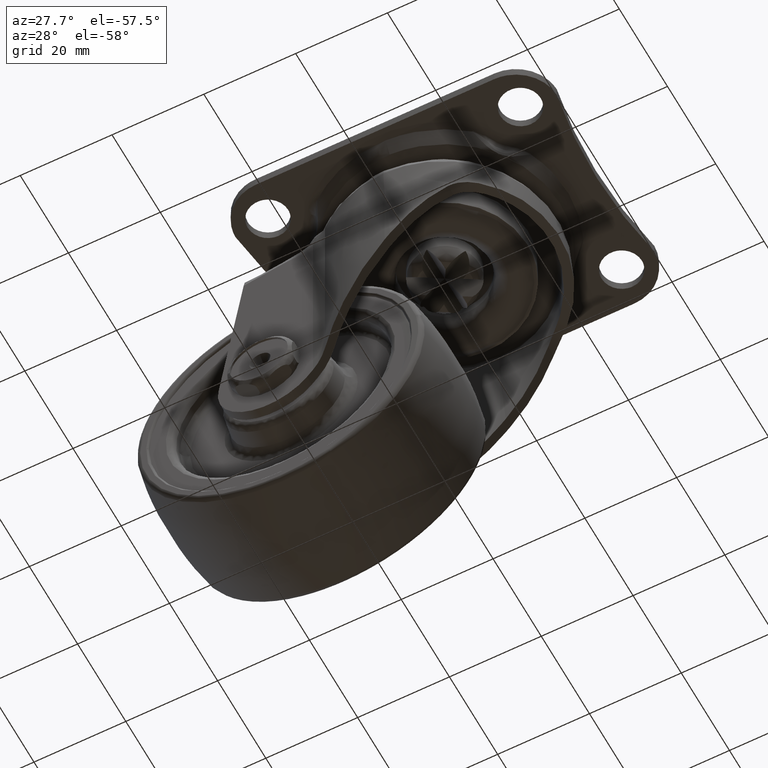
[diagram: clean part render]
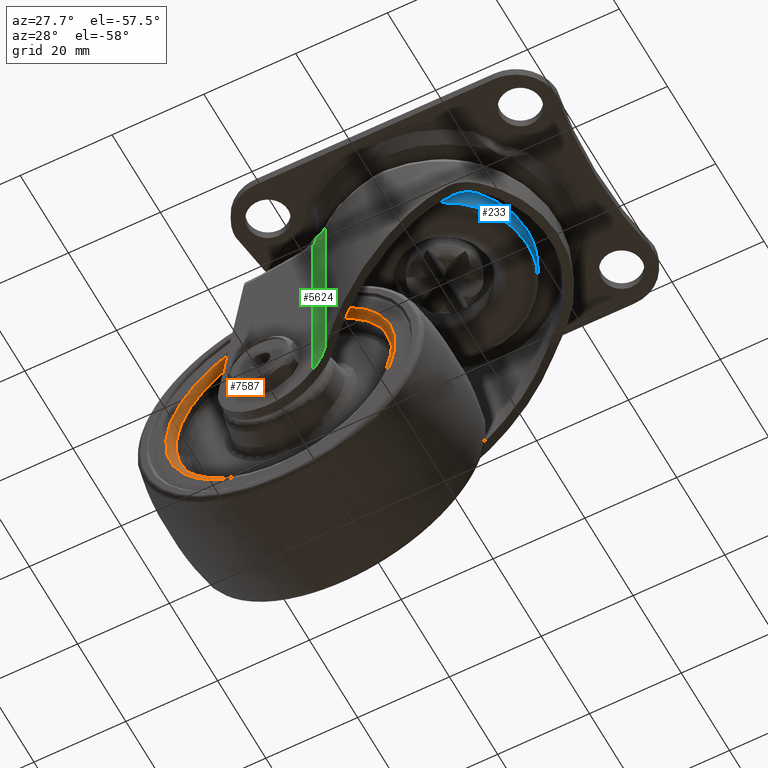
[diagram: same view with three faces highlighted in distinct colors, each labeled with its STEP entity id]
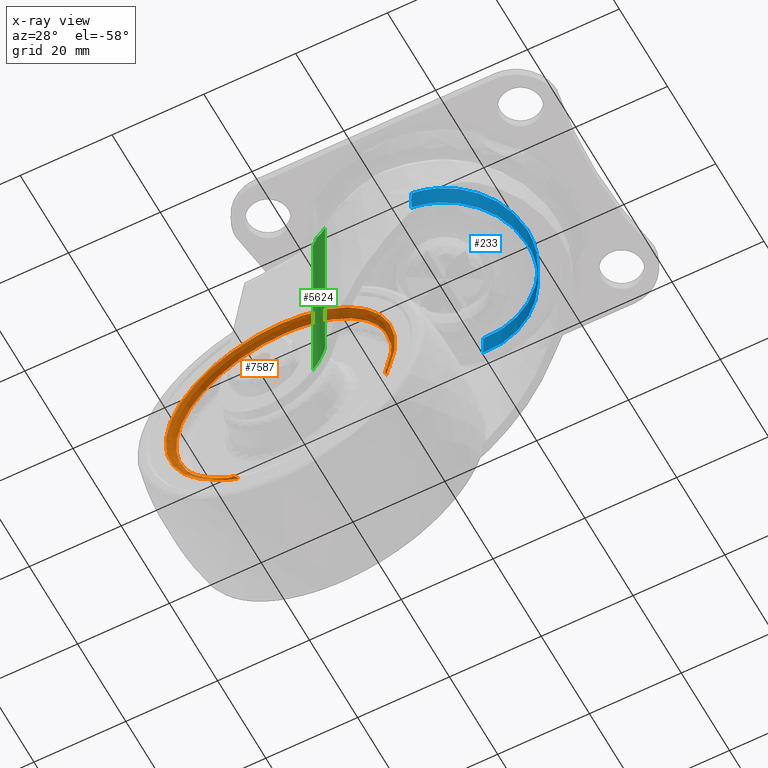
[diagram: x-ray of the same camera — body ghosted, the three highlighted faces saturated]
A machine part, auxiliary view with three faces highlighted in distinct colors.
The next image is the same camera in x-ray (body ghosted, the three faces saturated) — at least one of them is partly hidden behind the body in this view.
Their STEP definitions:

[orange] entity #7587 — the highlighted face is a freeform B-spline surface patch.
#6127=CARTESIAN_POINT('',(-42.886288982151058,-11.500000000000000,-33.541592740817762));
#6128=VERTEX_POINT('',#6127);
#6134=CARTESIAN_POINT('',(-39.005813372869362,-11.499999999756501,-73.763429723027201));
#6135=VERTEX_POINT('',#6134);
#6136=CARTESIAN_POINT('',(-42.886288982151065,-11.500000000000000,-33.541592740817762));
#6137=CARTESIAN_POINT('',(-52.500000000000000,-11.500000000000002,-40.583260841394967));
#6138=CARTESIAN_POINT('',(-52.500000000000007,-11.500000000000000,-52.499994000000001));
#6139=CARTESIAN_POINT('',(-52.500000000000007,-11.499999999999998,-67.413547459591825));
#6140=CARTESIAN_POINT('',(-39.005813372869355,-11.499999999756501,-73.763429723027187));
#6148=(BOUNDED_CURVE()B_SPLINE_CURVE(2,(#6136,#6137,#6138,#6139,#6140),.UNSPECIFIED.,.F.,.U.)B_SPLINE_CURVE_WITH_KNOTS((3,2,3),(0.601836029255207,0.750000000000000,0.927668464328042),.UNSPECIFIED.)CURVE()GEOMETRIC_REPRESENTATION_ITEM()RATIONAL_B_SPLINE_CURVE((0.858582433149524,0.826415110785501,1.0,0.791848446405268,0.879552627807912))REPRESENTATION_ITEM(''));
#6149=EDGE_CURVE('',#6128,#6135,#6148,.T.);
#6166=CARTESIAN_POINT('',(-6.723468278449111,-11.499999999737250,-59.983718638088760));
#6167=VERTEX_POINT('',#6166);
#6181=CARTESIAN_POINT('',(-10.866819571022670,-11.500000000000000,-37.552159122328412));
#6182=VERTEX_POINT('',#6181);
#6183=CARTESIAN_POINT('',(-6.723468278449111,-11.499999999737248,-59.983718638088753));
#6184=CARTESIAN_POINT('',(-5.500000000000002,-11.500000000000000,-56.341864984569291));
#6185=CARTESIAN_POINT('',(-5.500000000000002,-11.500000000000000,-52.499994000000001));
#6186=CARTESIAN_POINT('',(-5.500000000000003,-11.500000000000004,-44.062634278598722));
#6187=CARTESIAN_POINT('',(-10.866819571022670,-11.500000000000000,-37.552159122328405));
#6195=(BOUNDED_CURVE()B_SPLINE_CURVE(2,(#6183,#6184,#6185,#6186,#6187),.UNSPECIFIED.,.F.,.U.)B_SPLINE_CURVE_WITH_KNOTS((3,2,3),(0.195865557710780,0.250000000000000,0.360504598346041),.UNSPECIFIED.)CURVE()GEOMETRIC_REPRESENTATION_ITEM()RATIONAL_B_SPLINE_CURVE((0.900621820758322,0.936577555796957,1.0,0.870535809986962,0.855522726514614))REPRESENTATION_ITEM(''));
#6196=EDGE_CURVE('',#6167,#6182,#6195,.T.);
#6296=CARTESIAN_POINT('',(-29.0,-11.500000000000000,-28.999994000000001));
#6297=VERTEX_POINT('',#6296);
#6298=CARTESIAN_POINT('',(-10.866819571022670,-11.500000000000000,-37.552159122328405));
#6299=CARTESIAN_POINT('',(-17.916677845793483,-11.500000000000000,-28.999994000000008));
#6300=CARTESIAN_POINT('',(-29.0,-11.500000000000000,-28.999994000000001));
#6308=(BOUNDED_CURVE()B_SPLINE_CURVE(2,(#6298,#6299,#6300),.UNSPECIFIED.,.F.,.U.)B_SPLINE_CURVE_WITH_KNOTS((3,3),(0.360504598346041,0.500000000000000),.UNSPECIFIED.)CURVE()GEOMETRIC_REPRESENTATION_ITEM()RATIONAL_B_SPLINE_CURVE((0.855522726514614,0.836570971199586,1.0))REPRESENTATION_ITEM(''));
#6309=EDGE_CURVE('',#6182,#6297,#6308,.T.);
#6311=CARTESIAN_POINT('',(-29.0,-11.500000000000000,-28.999994000000001));
#6312=CARTESIAN_POINT('',(-36.685823804069429,-11.499999999999998,-28.999994000000001));
#6313=CARTESIAN_POINT('',(-42.886288982151065,-11.500000000000000,-33.541592740817762));
#6321=(BOUNDED_CURVE()B_SPLINE_CURVE(2,(#6311,#6312,#6313),.UNSPECIFIED.,.F.,.U.)B_SPLINE_CURVE_WITH_KNOTS((3,3),(0.500000000000000,0.601836029255207),.UNSPECIFIED.)CURVE()GEOMETRIC_REPRESENTATION_ITEM()RATIONAL_B_SPLINE_CURVE((1.0,0.880691670401046,0.858582433149524))REPRESENTATION_ITEM(''));
#6322=EDGE_CURVE('',#6297,#6128,#6321,.T.);
#7472=CARTESIAN_POINT('',(-5.194993617072941,-12.995781216700696,-60.497204472636447));
#7473=CARTESIAN_POINT('',(1.926455938576122,-12.995781216700692,-39.299043850507466));
#7474=CARTESIAN_POINT('',(-18.307651043585537,-12.995781216700694,-29.777595842474767));
#7475=CARTESIAN_POINT('',(-41.030049201110778,-12.995781216700690,-19.085246886060308));
#7476=CARTESIAN_POINT('',(-51.722398157525241,-12.995781216700694,-41.807645043585538));
#7477=CARTESIAN_POINT('',(-62.414747113939697,-12.995781216700690,-64.530043201110772));
#7478=CARTESIAN_POINT('',(-39.692348956414477,-12.995781216700694,-75.222392157525221));
#7479=CARTESIAN_POINT('',(-6.428826548325751,-13.093607876387329,-60.082702519535701));
#7480=CARTESIAN_POINT('',(0.323512458110549,-13.093607876387328,-39.983259882894352));
#7481=CARTESIAN_POINT('',(-18.861844226425116,-13.093607876387328,-30.955316304835147));
#7482=CARTESIAN_POINT('',(-40.406521921589970,-13.093607876387326,-20.817160531260271));
#7483=CARTESIAN_POINT('',(-50.544677695164857,-13.093607876387328,-42.361838226425121));
#7484=CARTESIAN_POINT('',(-60.682833468739730,-13.093607876387326,-63.906515921589978));
#7485=CARTESIAN_POINT('',(-39.138155773574915,-13.093607876387328,-74.044671695164837));
#7486=CARTESIAN_POINT('',(-6.691145680590174,-11.818010664883081,-59.994577304277520));
#7487=CARTESIAN_POINT('',(-0.017281446974875,-11.818010664883083,-40.128727677885735));
#7488=CARTESIAN_POINT('',(-18.979668504856171,-11.818010664883079,-31.205705641925331));
#7489=CARTESIAN_POINT('',(-40.273956862930838,-11.818010664883083,-21.185374146781506));
#7490=CARTESIAN_POINT('',(-50.294288358074667,-11.818010664883079,-42.479662504856172));
#7491=CARTESIAN_POINT('',(-60.314619853218495,-11.818010664883083,-63.773950862930832));
#7492=CARTESIAN_POINT('',(-39.020331495143850,-11.818010664883079,-73.794282358074653));
#7493=CARTESIAN_POINT('',(-6.735281252638595,-11.603389595702504,-59.979750109807412));
#7494=CARTESIAN_POINT('',(-0.074620512645461,-11.603389595702508,-40.153202844036024));
#7495=CARTESIAN_POINT('',(-18.999492609506323,-11.603389595702511,-31.247834008742895));
#7496=CARTESIAN_POINT('',(-40.251652600763428,-11.603389595702508,-21.247326618249215));
#7497=CARTESIAN_POINT('',(-50.252159991257102,-11.603389595702511,-42.499486609506313));
#7498=CARTESIAN_POINT('',(-60.252667381750783,-11.603389595702508,-63.751646600763422));
#7499=CARTESIAN_POINT('',(-39.000507390493695,-11.603389595702511,-73.752153991257089));
#7500=CARTESIAN_POINT('',(-6.719241579842741,-11.384429117521787,-59.985138583021715));
#7501=CARTESIAN_POINT('',(-0.053782449172143,-11.384429117521787,-40.144308121741631));
#7502=CARTESIAN_POINT('',(-18.992288167889239,-11.384429117521787,-31.232523790979410));
#7503=CARTESIAN_POINT('',(-40.259758376909822,-11.384429117521787,-21.224811958868649));
#7504=CARTESIAN_POINT('',(-50.267470209020594,-11.384429117521787,-42.492282167889236));
#7505=CARTESIAN_POINT('',(-60.275182041131345,-11.384429117521787,-63.759752376909837));
#7506=CARTESIAN_POINT('',(-39.007711832110772,-11.384429117521787,-73.767464209020574));
#7514=(BOUNDED_SURFACE()B_SPLINE_SURFACE(2,2,((#7472,#7479,#7486,#7493,#7500),(#7473,#7480,#7487,#7494,#7501),(#7474,#7481,#7488,#7495,#7502),(#7475,#7482,#7489,#7496,#7503),(#7476,#7483,#7490,#7497,#7504),(#7477,#7484,#7491,#7498,#7505),(#7478,#7485,#7492,#7499,#7506)),.UNSPECIFIED.,.F.,.F.,.U.)B_SPLINE_SURFACE_WITH_KNOTS((3,2,2,3),(3,2,3),(0.0,38.279012211096543,79.886634179679731,121.494256148262910),(0.0,2.244720373372221,2.727854528845697),.UNSPECIFIED.)GEOMETRIC_REPRESENTATION_ITEM()RATIONAL_B_SPLINE_SURFACE(((0.914723971658624,0.705769932775840,0.956886118190660,0.902838047167966,0.870102511298719),(0.698349392306003,0.538822660095102,0.730538238691624,0.689275039384001,0.664282973701446),(0.955938177249599,0.737569413286457,1.0,0.943516715317292,0.909306232745819),(0.675950367528300,0.521540333730637,0.707106781186548,0.667167067563715,0.642976603349761),(0.955938177249599,0.737569413286457,1.0,0.943516715317292,0.909306232745819),(0.675950367528300,0.521540333730637,0.707106781186548,0.667167067563715,0.642976603349761),(0.955938177249599,0.737569413286457,1.0,0.943516715317292,0.909306232745819)))REPRESENTATION_ITEM('')SURFACE());
#7515=ORIENTED_EDGE('',*,*,#6309,.F.);
#7516=ORIENTED_EDGE('',*,*,#6196,.F.);
#7517=CARTESIAN_POINT('',(-5.301561999001411,-13.0,-60.461403189279849));
#7518=VERTEX_POINT('',#7517);
#7519=CARTESIAN_POINT('',(-5.301561999001411,-13.000000000000002,-60.461403189279849));
#7520=CARTESIAN_POINT('',(-6.448076462774060,-12.999999998913845,-60.076235576618451));
#7521=CARTESIAN_POINT('',(-6.691145680590174,-11.818010664883081,-59.994577304277513));
#7522=CARTESIAN_POINT('',(-6.723468278500409,-11.660833354151102,-59.983718638064509));
#7523=CARTESIAN_POINT('',(-6.723468278449111,-11.499999999737254,-59.983718638088760));
#7531=(BOUNDED_CURVE()B_SPLINE_CURVE(2,(#7519,#7520,#7521,#7522,#7523),.UNSPECIFIED.,.F.,.U.)B_SPLINE_CURVE_WITH_KNOTS((3,2,3),(-3.730990500878828,-2.0,-1.706783669972400),.UNSPECIFIED.)CURVE()GEOMETRIC_REPRESENTATION_ITEM()RATIONAL_B_SPLINE_CURVE((0.893061594130093,0.719628607697256,0.956886118190660,0.916696540915082,0.888291203993610))REPRESENTATION_ITEM(''));
#7532=EDGE_CURVE('',#7518,#6167,#7531,.T.);
#7533=ORIENTED_EDGE('',*,*,#7532,.F.);
#7534=CARTESIAN_POINT('',(-29.0,-13.0,-27.499994000000001));
#7535=VERTEX_POINT('',#7534);
#7536=CARTESIAN_POINT('',(-5.301561999001411,-13.000000000000004,-60.461403189279849));
#7537=CARTESIAN_POINT('',(-4.000000000000000,-13.000000000000004,-56.587090792136379));
#7538=CARTESIAN_POINT('',(-4.0,-13.0,-52.499994000000001));
#7539=CARTESIAN_POINT('',(-4.0,-13.0,-27.499994000000001));
#7540=CARTESIAN_POINT('',(-29.0,-13.0,-27.499994000000001));
#7548=(BOUNDED_CURVE()B_SPLINE_CURVE(2,(#7536,#7537,#7538,#7539,#7540),.UNSPECIFIED.,.F.,.U.)B_SPLINE_CURVE_WITH_KNOTS((3,2,3),(0.195865557710267,0.250000000000000,0.500000000000000),.UNSPECIFIED.)CURVE()GEOMETRIC_REPRESENTATION_ITEM()RATIONAL_B_SPLINE_CURVE((0.900621820757640,0.936577555796356,1.0,0.707106781186547,1.0))REPRESENTATION_ITEM(''));
#7549=EDGE_CURVE('',#7518,#7535,#7548,.T.);
#7550=ORIENTED_EDGE('',*,*,#7549,.T.);
#7551=CARTESIAN_POINT('',(-39.644476391764108,-12.999999999997801,-75.120671081516662));
#7552=VERTEX_POINT('',#7551);
#7553=CARTESIAN_POINT('',(-29.0,-13.0,-27.499994000000001));
#7554=CARTESIAN_POINT('',(-53.999999913660218,-12.999999999999755,-27.499993816518504));
#7555=CARTESIAN_POINT('',(-53.999999527398003,-12.999999999998661,-52.499992995669032));
#7556=CARTESIAN_POINT('',(-53.999999282268483,-12.999999999997961,-68.365478885830925));
#7557=CARTESIAN_POINT('',(-39.644476391764108,-12.999999999997799,-75.120671081516662));
#7565=(BOUNDED_CURVE()B_SPLINE_CURVE(2,(#7553,#7554,#7555,#7556,#7557),.UNSPECIFIED.,.F.,.U.)B_SPLINE_CURVE_WITH_KNOTS((3,2,3),(0.500000000000000,0.750000000000000,0.927668499862319),.UNSPECIFIED.)CURVE()GEOMETRIC_REPRESENTATION_ITEM()RATIONAL_B_SPLINE_CURVE((1.0,0.707106781186547,1.0,0.791848404774272,0.879552662890174))REPRESENTATION_ITEM(''));
#7566=EDGE_CURVE('',#7535,#7552,#7565,.T.);
#7567=ORIENTED_EDGE('',*,*,#7566,.T.);
#7568=CARTESIAN_POINT('',(-39.644476391764108,-12.999999999997804,-75.120671081516662));
#7569=CARTESIAN_POINT('',(-39.129506222139888,-12.999998537124204,-74.026298380036451));
#7570=CARTESIAN_POINT('',(-39.020330912258380,-11.818010665097880,-73.794282632359767));
#7571=CARTESIAN_POINT('',(-39.005813096967842,-11.660833354400513,-73.763429852798893));
#7572=CARTESIAN_POINT('',(-39.005813372869355,-11.499999999756497,-73.763429723027201));
#7580=(BOUNDED_CURVE()B_SPLINE_CURVE(2,(#7568,#7569,#7570,#7571,#7572),.UNSPECIFIED.,.F.,.U.)B_SPLINE_CURVE_WITH_KNOTS((3,2,3),(-3.730988890814318,-2.0,-1.706783670006399),.UNSPECIFIED.)CURVE()GEOMETRIC_REPRESENTATION_ITEM()RATIONAL_B_SPLINE_CURVE((0.933299432940868,0.752052741386628,1.0,0.957999623458944,0.928314443185605))REPRESENTATION_ITEM(''));
#7581=EDGE_CURVE('',#7552,#6135,#7580,.T.);
#7582=ORIENTED_EDGE('',*,*,#7581,.T.);
#7583=ORIENTED_EDGE('',*,*,#6149,.F.);
#7584=ORIENTED_EDGE('',*,*,#6322,.F.);
#7585=EDGE_LOOP('',(#7515,#7516,#7533,#7550,#7567,#7582,#7583,#7584));
#7586=FACE_OUTER_BOUND('',#7585,.T.);
#7587=ADVANCED_FACE('',(#7586),#7514,.T.);

[blue] entity #233 — the highlighted face is a freeform B-spline surface patch.
#66=CARTESIAN_POINT('',(2.124584806942835,-17.874175208862269,-15.244772161926321));
#67=VERTEX_POINT('',#66);
#85=CARTESIAN_POINT('',(2.124585194580178,-17.874175162787068,-10.106001000000020));
#86=VERTEX_POINT('',#85);
#87=CARTESIAN_POINT('',(2.124585194580178,-17.874175162787068,-10.106001000000020));
#88=CARTESIAN_POINT('',(2.124584806942835,-17.874175208862269,-15.244772161926321));
#89=QUASI_UNIFORM_CURVE('',1,(#87,#88),.UNSPECIFIED.,.F.,.U.);
#90=EDGE_CURVE('',#86,#67,#89,.T.);
#109=CARTESIAN_POINT('',(-1.098867602200592,17.966426745260069,-10.106001000000020));
#110=VERTEX_POINT('',#109);
#124=CARTESIAN_POINT('',(-1.098867525993605,17.966426749921030,-15.244772161926230));
#125=VERTEX_POINT('',#124);
#126=CARTESIAN_POINT('',(-1.098867602200592,17.966426745260069,-10.106001000000020));
#127=CARTESIAN_POINT('',(-1.098867525993605,17.966426749921030,-15.244772161926230));
#128=QUASI_UNIFORM_CURVE('',1,(#126,#127),.UNSPECIFIED.,.F.,.U.);
#129=EDGE_CURVE('',#110,#125,#128,.T.);
#147=CARTESIAN_POINT('',(-1.346448466132612,17.951284050924944,-9.977531720951864));
#148=CARTESIAN_POINT('',(-1.223015376960345,17.958833542071989,-9.977531720951863));
#149=CARTESIAN_POINT('',(16.867552659966176,19.065300083221029,-9.977531720951861));
#150=CARTESIAN_POINT('',(17.966426371593599,1.098873711627426,-9.977531720951861));
#151=CARTESIAN_POINT('',(19.004151541185493,-15.867782835111013,-9.977531720951859));
#152=CARTESIAN_POINT('',(1.998229955974152,-17.889194398294908,-9.977531720951863));
#153=CARTESIAN_POINT('',(1.872522965803407,-17.904136579595164,-9.977531720951863));
#154=CARTESIAN_POINT('',(-1.346448466132612,17.951284050924944,-15.376453172950663));
#155=CARTESIAN_POINT('',(-1.223015376960345,17.958833542071989,-15.376453172950656));
#156=CARTESIAN_POINT('',(16.867552659966176,19.065300083221029,-15.376453172950663));
#157=CARTESIAN_POINT('',(17.966426371593599,1.098873711627426,-15.376453172950660));
#158=CARTESIAN_POINT('',(19.004151541185493,-15.867782835111013,-15.376453172950660));
#159=CARTESIAN_POINT('',(1.998229955974152,-17.889194398294908,-15.376453172950667));
#160=CARTESIAN_POINT('',(1.872522965803407,-17.904136579595164,-15.376453172950661));
#168=(BOUNDED_SURFACE()B_SPLINE_SURFACE(2,1,((#147,#154),(#148,#155),(#149,#156),(#150,#157),(#151,#158),(#152,#159),(#153,#160)),.UNSPECIFIED.,.F.,.F.,.U.)B_SPLINE_SURFACE_WITH_KNOTS((3,1,2,1,3),(2,2),(0.0,0.292262057371620,30.115638548234450,58.746079979462770,59.038385440338800),(0.0,5.398921451998803),.UNSPECIFIED.)GEOMETRIC_REPRESENTATION_ITEM()RATIONAL_B_SPLINE_SURFACE(((1.005740568962528,1.005740568962528),(1.002870284481264,1.002870284481264),(0.707106781186548,0.707106781186548),(1.0,1.0),(0.718822509939086,0.718822509939086),(0.980146854679547,0.980146854679547),(0.982787908563967,0.982787908563967)))REPRESENTATION_ITEM('')SURFACE());
#169=CARTESIAN_POINT('',(18.0,0.0,-15.244772161926299));
#170=VERTEX_POINT('',#169);
#171=CARTESIAN_POINT('',(18.0,0.0,-15.244772161926299));
#172=CARTESIAN_POINT('',(18.000000000000007,-15.987169765061154,-15.244772161926303));
#173=CARTESIAN_POINT('',(2.124584806942835,-17.874175208862269,-15.244772161926329));
#181=(BOUNDED_CURVE()B_SPLINE_CURVE(2,(#171,#172,#173),.UNSPECIFIED.,.F.,.U.)B_SPLINE_CURVE_WITH_KNOTS((3,3),(0.500000000000000,0.729562770567463),.UNSPECIFIED.)CURVE()GEOMETRIC_REPRESENTATION_ITEM()RATIONAL_B_SPLINE_CURVE((1.0,0.731050484835047,0.956027336422433))REPRESENTATION_ITEM(''));
#182=EDGE_CURVE('',#170,#67,#181,.T.);
#183=ORIENTED_EDGE('',*,*,#182,.F.);
#184=CARTESIAN_POINT('',(-1.098867525993605,17.966426749921030,-15.244772161926228));
#185=CARTESIAN_POINT('',(-0.549946637885813,18.000000000000004,-15.244772161926299));
#186=CARTESIAN_POINT('',(0.0,18.0,-15.244772161926299));
#187=CARTESIAN_POINT('',(18.000000000000007,18.000000000000007,-15.244772161926299));
#188=CARTESIAN_POINT('',(18.0,0.0,-15.244772161926299));
#196=(BOUNDED_CURVE()B_SPLINE_CURVE(2,(#184,#185,#186,#187,#188),.UNSPECIFIED.,.F.,.U.)B_SPLINE_CURVE_WITH_KNOTS((3,2,3),(0.239333021647845,0.250000000000000,0.500000000000000),.UNSPECIFIED.)CURVE()GEOMETRIC_REPRESENTATION_ITEM()RATIONAL_B_SPLINE_CURVE((0.976072168991337,0.987502857501695,1.0,0.707106781186547,1.0))REPRESENTATION_ITEM(''));
#197=EDGE_CURVE('',#125,#170,#196,.T.);
#198=ORIENTED_EDGE('',*,*,#197,.F.);
#199=ORIENTED_EDGE('',*,*,#129,.F.);
#200=CARTESIAN_POINT('',(18.0,0.0,-10.106001000000020));
#201=VERTEX_POINT('',#200);
#202=CARTESIAN_POINT('',(-1.098867602200592,17.966426745260073,-10.106001000000020));
#203=CARTESIAN_POINT('',(-0.549946676096146,17.999999999999993,-10.106001000000020));
#204=CARTESIAN_POINT('',(0.0,18.0,-10.106001000000020));
#205=CARTESIAN_POINT('',(18.000000000000007,18.000000000000007,-10.106001000000019));
#206=CARTESIAN_POINT('',(18.0,0.0,-10.106001000000020));
#214=(BOUNDED_CURVE()B_SPLINE_CURVE(2,(#202,#203,#204,#205,#206),.UNSPECIFIED.,.F.,.U.)B_SPLINE_CURVE_WITH_KNOTS((3,2,3),(0.739333020915965,0.750000000000000,1.0),.UNSPECIFIED.)CURVE()GEOMETRIC_REPRESENTATION_ITEM()RATIONAL_B_SPLINE_CURVE((0.976072167422777,0.987502856644244,1.0,0.707106781186547,1.0))REPRESENTATION_ITEM(''));
#215=EDGE_CURVE('',#110,#201,#214,.T.);
#216=ORIENTED_EDGE('',*,*,#215,.T.);
#217=CARTESIAN_POINT('',(18.0,0.0,-10.106001000000020));
#218=CARTESIAN_POINT('',(18.0,-15.987169415906690,-10.106001000000020));
#219=CARTESIAN_POINT('',(2.124585194580179,-17.874175162787072,-10.106001000000020));
#227=(BOUNDED_CURVE()B_SPLINE_CURVE(2,(#217,#218,#219),.UNSPECIFIED.,.F.,.U.)B_SPLINE_CURVE_WITH_KNOTS((3,3),(0.0,0.229562766902287),.UNSPECIFIED.)CURVE()GEOMETRIC_REPRESENTATION_ITEM()RATIONAL_B_SPLINE_CURVE((1.0,0.731050489129068,0.956027329238518))REPRESENTATION_ITEM(''));
#228=EDGE_CURVE('',#201,#86,#227,.T.);
#229=ORIENTED_EDGE('',*,*,#228,.T.);
#230=ORIENTED_EDGE('',*,*,#90,.T.);
#231=EDGE_LOOP('',(#183,#198,#199,#216,#229,#230));
#232=FACE_OUTER_BOUND('',#231,.T.);
#233=ADVANCED_FACE('',(#232),#168,.T.);

[green] entity #5624 — the highlighted face is a freeform B-spline surface patch.
#2106=CARTESIAN_POINT('',(-18.592879937129101,-18.044885990340251,-11.259223868462060));
#2107=VERTEX_POINT('',#2106);
#2212=CARTESIAN_POINT('',(-18.208526314353900,-18.112099282122202,-11.106001000000020));
#2213=VERTEX_POINT('',#2212);
#2247=CARTESIAN_POINT('',(-18.208526314353900,-18.112099282122202,-11.106001000000020));
#2248=CARTESIAN_POINT('',(-18.243680773518751,-18.104527266363309,-11.106001000000029));
#2249=CARTESIAN_POINT('',(-18.278343089862499,-18.097457864437210,-11.109395923022710));
#2250=CARTESIAN_POINT('',(-18.346693493562942,-18.084247287718881,-11.122831065201339));
#2251=CARTESIAN_POINT('',(-18.380652380985399,-18.078060711835640,-11.132991780523980));
#2252=CARTESIAN_POINT('',(-18.478947348948431,-18.061146316891840,-11.172878686236210));
#2253=CARTESIAN_POINT('',(-18.539366145201011,-18.052105215699079,-11.211799389377360));
#2254=CARTESIAN_POINT('',(-18.592879937129101,-18.044885990340251,-11.259223868462060));
#2255=B_SPLINE_CURVE_WITH_KNOTS('',3,(#2247,#2248,#2249,#2250,#2251,#2252,#2253,#2254),.UNSPECIFIED.,.F.,.U.,(4,2,2,4),(0.0,0.250000000000001,0.500000000000002,1.0),.UNSPECIFIED.);
#2256=EDGE_CURVE('',#2213,#2107,#2255,.T.);
#2278=CARTESIAN_POINT('',(-16.051119520783899,-19.166665388888450,-11.106001000000020));
#2279=VERTEX_POINT('',#2278);
#2309=CARTESIAN_POINT('',(-16.051119520783899,-19.166665388888440,-11.106001000000020));
#2310=CARTESIAN_POINT('',(-16.999386804037844,-18.372539170668880,-11.106001000000024));
#2311=CARTESIAN_POINT('',(-18.208526314353900,-18.112099282122209,-11.106001000000020));
#2319=(BOUNDED_CURVE()B_SPLINE_CURVE(2,(#2309,#2310,#2311),.UNSPECIFIED.,.F.,.U.)CURVE()GEOMETRIC_REPRESENTATION_ITEM()QUASI_UNIFORM_CURVE()RATIONAL_B_SPLINE_CURVE((1.0,0.970739338100182,1.0))REPRESENTATION_ITEM(''));
#2320=EDGE_CURVE('',#2279,#2213,#2319,.T.);
#3486=CARTESIAN_POINT('',(-19.261344709030698,-18.0,-13.353386034379520));
#3487=VERTEX_POINT('',#3486);
#3488=CARTESIAN_POINT('',(-18.592879937129101,-18.044885990340251,-11.259223868462060));
#3489=CARTESIAN_POINT('',(-18.614072342738471,-18.042027049747919,-11.442228913530069));
#3490=CARTESIAN_POINT('',(-18.643608629014011,-18.038158820925830,-11.623868992218130));
#3491=CARTESIAN_POINT('',(-18.700649026718601,-18.031500549505498,-11.894258819035420));
#3492=CARTESIAN_POINT('',(-18.721791817332392,-18.029141601960280,-11.984042698470351));
#3493=CARTESIAN_POINT('',(-18.768468067244701,-18.024296717821301,-12.162899967547490));
#3494=CARTESIAN_POINT('',(-18.794043699493809,-18.021807489755950,-12.252085297791689));
#3495=CARTESIAN_POINT('',(-18.877016473951869,-18.014483435191750,-12.516568431766160));
#3496=CARTESIAN_POINT('',(-18.940733455731170,-18.009756450673429,-12.689385405626419));
#3497=CARTESIAN_POINT('',(-19.086461839078328,-18.002526814565680,-13.027425183461460));
#3498=CARTESIAN_POINT('',(-19.168425803945500,-17.999999999999989,-13.192667307919500));
#3499=CARTESIAN_POINT('',(-19.261344709030698,-18.0,-13.353386034379520));
#3500=B_SPLINE_CURVE_WITH_KNOTS('',3,(#3488,#3489,#3490,#3491,#3492,#3493,#3494,#3495,#3496,#3497,#3498,#3499),.UNSPECIFIED.,.F.,.U.,(4,2,2,2,2,4),(0.0,0.250000000000003,0.375000000000003,0.500000000000003,0.750000000000001,1.0),.UNSPECIFIED.);
#3501=EDGE_CURVE('',#2107,#3487,#3500,.T.);
#4762=CARTESIAN_POINT('',(-16.051119520783899,-19.166665388888450,-54.175669531685401));
#4763=VERTEX_POINT('',#4762);
#4777=CARTESIAN_POINT('',(-19.261344709030698,-18.0,-58.005313428782898));
#4778=VERTEX_POINT('',#4777);
#4779=CARTESIAN_POINT('',(-19.261344709030698,-18.0,-58.005313428782898));
#4780=CARTESIAN_POINT('',(-17.444236374762109,-17.999999999999993,-55.837590781731734));
#4781=CARTESIAN_POINT('',(-16.051119520783899,-19.166665388888440,-54.175669531685401));
#4789=(BOUNDED_CURVE()B_SPLINE_CURVE(2,(#4779,#4780,#4781),.UNSPECIFIED.,.F.,.U.)CURVE()GEOMETRIC_REPRESENTATION_ITEM()QUASI_UNIFORM_CURVE()RATIONAL_B_SPLINE_CURVE((1.0,0.939858213301964,1.0))REPRESENTATION_ITEM(''));
#4790=EDGE_CURVE('',#4778,#4763,#4789,.T.);
#5589=CARTESIAN_POINT('',(-16.051119520783899,-19.166665388888450,-54.175669531685401));
#5590=CARTESIAN_POINT('',(-16.051119520783899,-19.166665388888450,-11.106001000000020));
#5591=QUASI_UNIFORM_CURVE('',1,(#5589,#5590),.UNSPECIFIED.,.F.,.U.);
#5592=EDGE_CURVE('',#4763,#2279,#5591,.T.);
#5598=CARTESIAN_POINT('',(-19.392229450570071,-18.001713375122218,-59.177796239502470));
#5599=CARTESIAN_POINT('',(-19.392229450570071,-18.001713375122218,-9.904206119012457));
#5600=CARTESIAN_POINT('',(-17.403329929154147,-17.949632208245426,-59.177796239502477));
#5601=CARTESIAN_POINT('',(-17.403329929154147,-17.949632208245426,-9.904206119012457));
#5602=CARTESIAN_POINT('',(-15.922388019185357,-19.278257367396698,-59.177796239502463));
#5603=CARTESIAN_POINT('',(-15.922388019185357,-19.278257367396698,-9.904206119012459));
#5611=(BOUNDED_SURFACE()B_SPLINE_SURFACE(1,2,((#5598,#5600,#5602),(#5599,#5601,#5603)),.UNSPECIFIED.,.F.,.F.,.U.)B_SPLINE_SURFACE_WITH_KNOTS((2,2),(3,3),(0.0,49.273590120490013),(0.0,3.833007411046271),.UNSPECIFIED.)GEOMETRIC_REPRESENTATION_ITEM()RATIONAL_B_SPLINE_SURFACE(((1.0,0.928205973073988,0.997984457892107),(1.0,0.928205973073988,0.997984457892107)))REPRESENTATION_ITEM('')SURFACE());
#5612=ORIENTED_EDGE('',*,*,#2320,.T.);
#5613=ORIENTED_EDGE('',*,*,#2256,.T.);
#5614=ORIENTED_EDGE('',*,*,#3501,.T.);
#5615=CARTESIAN_POINT('',(-19.261344709030698,-18.0,-58.005313428782898));
#5616=CARTESIAN_POINT('',(-19.261344709030698,-18.0,-13.353386034379520));
#5617=QUASI_UNIFORM_CURVE('',1,(#5615,#5616),.UNSPECIFIED.,.F.,.U.);
#5618=EDGE_CURVE('',#4778,#3487,#5617,.T.);
#5619=ORIENTED_EDGE('',*,*,#5618,.F.);
#5620=ORIENTED_EDGE('',*,*,#4790,.T.);
#5621=ORIENTED_EDGE('',*,*,#5592,.T.);
#5622=EDGE_LOOP('',(#5612,#5613,#5614,#5619,#5620,#5621));
#5623=FACE_OUTER_BOUND('',#5622,.T.);
#5624=ADVANCED_FACE('',(#5623),#5611,.F.);